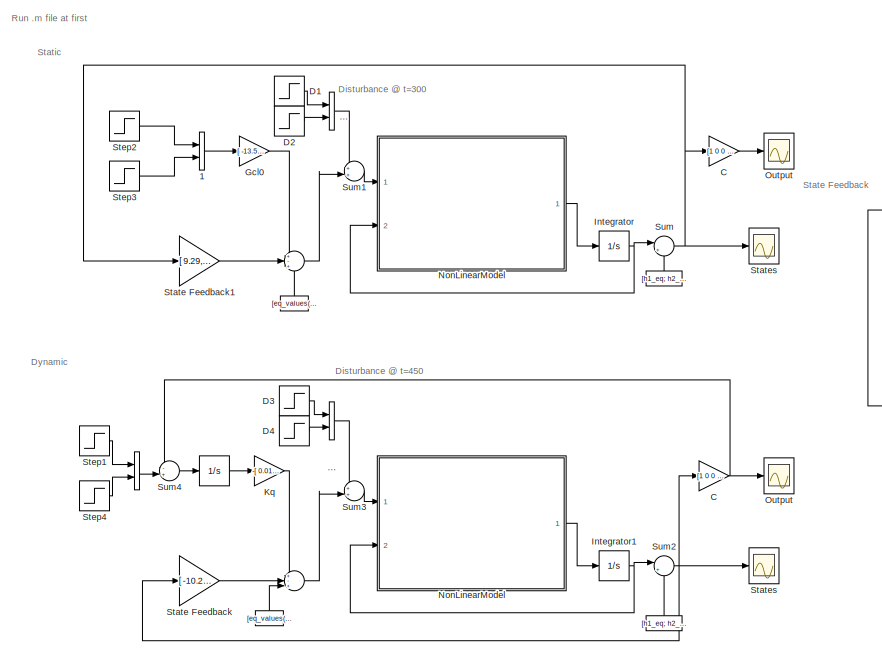
[diagram: root canvas - part 1/2, left side, full height]
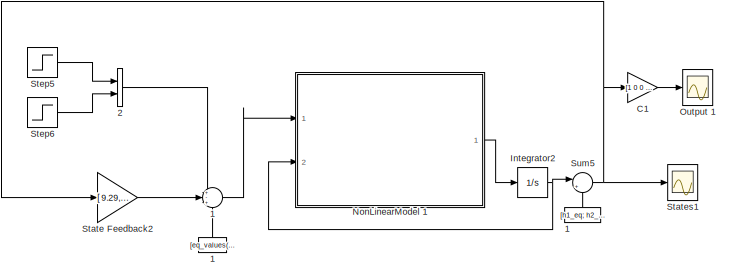
[diagram: root canvas - part 2/2, middle right region]
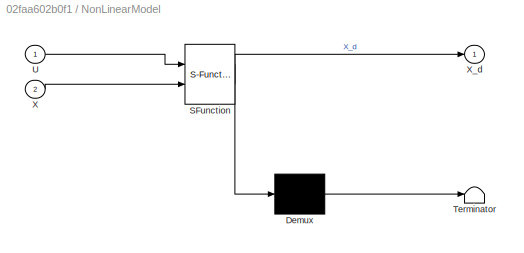
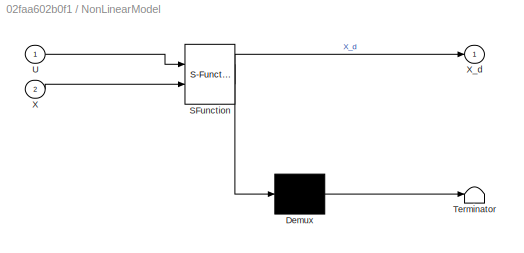
MODEL slx_02faa602b0f1
KIND model
CONFIG AbsTol = auto
CONFIG EnableMultiTasking = off
CONFIG FixedStep = auto
CONFIG MaxStep = auto
CONFIG MinStep = auto
CONFIG RelTol = 1e-3
CONFIG SampleTimeConstraint = Unconstrained
CONFIG Solver = VariableStepAuto
CONFIG SolverName = VariableStepAuto
CONFIG StartTime = 0.0
CONFIG StopTime = 1000
BLOCK [Constant]  
  NameLocation = right
  Value = [h1_eq; h2_eq; eq_values(1);eq_values(2)]
BLOCK [Concatenate]       
  Ports = [2, 1]
BLOCK [Sum]         
  Inputs = +-+
  Ports = [3, 1]
BLOCK [Constant]                         
  NameLocation = right
  Value = [eq_values(3);eq_values(4)]
BLOCK [Constant]                              
  NameLocation = right
  Value = [h1_eq; h2_eq; eq_values(1);eq_values(2)]
BLOCK [Constant]                                   
  NameLocation = right
  Value = [eq_values(3);eq_values(4)]
BLOCK [Concatenate]                                                                    
  Ports = [2, 1]
BLOCK [Concatenate]                                                                          
  Ports = [2, 1]
BLOCK [Constant]                              1
  NameLocation = right
  Value = [h1_eq; h2_eq; eq_values(1);eq_values(2)]
BLOCK [Constant]                         1
  NameLocation = right
  Value = [eq_values(3);eq_values(4)]
BLOCK [Sum]         1
  Inputs = +-+
  Ports = [3, 1]
BLOCK [Concatenate]    1
  Ports = [2, 1]
BLOCK [Concatenate]    2
  Ports = [2, 1]
BLOCK [Gain] C
  Gain = [1 0 0 0;\n   0 1 0 0]
  Multiplication = Matrix(K*u)
BLOCK [Gain] C  
  Gain = [1 0 0 0;\n   0 1 0 0]
  Multiplication = Matrix(K*u)
BLOCK [Gain] C1
  Gain = [1 0 0 0;\n   0 1 0 0]
  Multiplication = Matrix(K*u)
BLOCK [Step] D1
  After = 4
  SampleTime = 0
  Time = 300
BLOCK [Step] D2
  After = 4
  SampleTime = 0
  Time = 300
BLOCK [Step] D3
  After = 4
  SampleTime = 0
  Time = 450
BLOCK [Step] D4
  After = 4
  SampleTime = 0
  Time = 450
BLOCK [Gain] Gcl0
  Gain = [ -13.5, 60.0; 44.0, 0.94]
  Multiplication = Matrix(K*u)
BLOCK [Integrator] Integrator
  InitialCondition = [h1_eq;h2_eq;h3_eq;h4_eq]
  Ports = [1, 1]
BLOCK [Integrator] Integrator1
  InitialCondition = [h1_eq;h2_eq;h3_eq;h4_eq]
  Ports = [1, 1]
BLOCK [Integrator] Integrator2
  InitialCondition = [h1_eq;h2_eq;h3_eq;h4_eq]
  Ports = [1, 1]
BLOCK [Gain] Kq
  Gain = -[ 0.0157, -0.888; -0.994, -0.123]
  Multiplication = Matrix(u*K)
BLOCK [SubSystem] NonLinearModel
  ErrorFcn = Stateflow.Translate.translate
  PermitHierarchicalResolution = ExplicitOnly
  Ports = [2, 1]
  RequestExecContextInheritance = off
  SFBlockType = MATLAB Function
  TreatAsAtomicUnit = on
BLOCK [SubSystem] NonLinearModel 
  ErrorFcn = Stateflow.Translate.translate
  PermitHierarchicalResolution = ExplicitOnly
  Ports = [2, 1]
  RequestExecContextInheritance = off
  SFBlockType = MATLAB Function
  TreatAsAtomicUnit = on
BLOCK [Demux] NonLinearModel / Demux 
  Outputs = 1
  Ports = [1, 1]
BLOCK [S-Function] NonLinearModel / SFunction 
  EnableBusSupport = on
  FunctionName = sf_sfun
  PortCounts = [2 2]
  Ports = [2, 2]
  SFcnIsStateOwnerBlock = off
  SFunctionDeploymentMode = off
  Tag = Stateflow S-Function 4
BLOCK [Terminator] NonLinearModel / Terminator 
BLOCK [Inport] NonLinearModel /U
BLOCK [Inport] NonLinearModel /X
  Port = 2
BLOCK [Outport] NonLinearModel /X_d
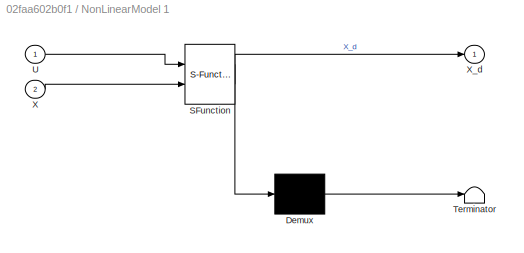
BLOCK [SubSystem] NonLinearModel 1
  ErrorFcn = Stateflow.Translate.translate
  PermitHierarchicalResolution = ExplicitOnly
  Ports = [2, 1]
  RequestExecContextInheritance = off
  SFBlockType = MATLAB Function
  TreatAsAtomicUnit = on
BLOCK [Demux] NonLinearModel 1/ Demux 
  Outputs = 1
  Ports = [1, 1]
BLOCK [S-Function] NonLinearModel 1/ SFunction 
  EnableBusSupport = on
  FunctionName = sf_sfun
  PortCounts = [2 2]
  Ports = [2, 2]
  SFcnIsStateOwnerBlock = off
  SFunctionDeploymentMode = off
  Tag = Stateflow S-Function 2
BLOCK [Terminator] NonLinearModel 1/ Terminator 
BLOCK [Inport] NonLinearModel 1/U
BLOCK [Inport] NonLinearModel 1/X
  Port = 2
BLOCK [Outport] NonLinearModel 1/X_d
BLOCK [Demux] NonLinearModel/ Demux 
  Outputs = 1
  Ports = [1, 1]
BLOCK [S-Function] NonLinearModel/ SFunction 
  EnableBusSupport = on
  FunctionName = sf_sfun
  PortCounts = [2 2]
  Ports = [2, 2]
  SFcnIsStateOwnerBlock = off
  SFunctionDeploymentMode = off
  Tag = Stateflow S-Function 1
BLOCK [Terminator] NonLinearModel/ Terminator 
BLOCK [Inport] NonLinearModel/U
BLOCK [Inport] NonLinearModel/X
  Port = 2
BLOCK [Outport] NonLinearModel/X_d
BLOCK [Scope] Output 
  Floating = off
  NumInputPorts = 1
  Ports = [1]
  ScopeSpecificationString = Simulink.scopes.TimeScopeBlockCfg('CurrentConfiguration', extmgr.ConfigurationSet(extmgr.Configuration('Core','General UI',true,'FigureColor',[1 1 1]),extmgr.Configuration('Core','Source UI',true),extmgr.Configuration('Sources','WiredSimulink',true,'DataLoggingVariableName','ScopeData2','DataLoggingSaveFormat','StructureWithTime','DataLoggingDecimation','1','DataLoggingDecimateData',true),extmgr.C...<+3098ch>
BLOCK [Scope] Output  
  Floating = off
  NumInputPorts = 1
  Ports = [1]
  ScopeSpecificationString = Simulink.scopes.TimeScopeBlockCfg('CurrentConfiguration', extmgr.ConfigurationSet(extmgr.Configuration('Core','General UI',true,'FigureColor',[1 1 1]),extmgr.Configuration('Core','Source UI',true),extmgr.Configuration('Sources','WiredSimulink',true,'DataLoggingVariableName','ScopeData1','DataLoggingSaveFormat','StructureWithTime','DataLoggingDecimation','1','DataLoggingDecimateData',true),extmgr.C...<+3137ch>
BLOCK [Scope] Output 1
  Floating = off
  NumInputPorts = 1
  Ports = [1]
  ScopeSpecificationString = Simulink.scopes.TimeScopeBlockCfg('CurrentConfiguration', extmgr.ConfigurationSet(extmgr.Configuration('Core','General UI',true,'FigureColor',[1 1 1]),extmgr.Configuration('Core','Source UI',true),extmgr.Configuration('Sources','WiredSimulink',true,'DataLoggingVariableName','ScopeData1','DataLoggingSaveFormat','StructureWithTime','DataLoggingDecimation','1','DataLoggingDecimateData',true),extmgr.C...<+3114ch>
BLOCK [Gain] State Feedback 
  Gain = [ -10.2, 36.3, -16.5,  24.5; 41.0, -4.6,  24.7, -13.1]
  Multiplication = Matrix(K*u)
BLOCK [Gain] State Feedback1
  Gain = [ 9.29, 34.1, -13.6,  24.9; 23.0, 12.0,  18.4, -3.73]
  Multiplication = Matrix(K*u)
BLOCK [Gain] State Feedback2
  Gain = [ 9.29, 34.1, -13.6,  24.9; 23.0, 12.0,  18.4, -3.73]
  Multiplication = Matrix(K*u)
BLOCK [Scope] States
  Floating = off
  NumInputPorts = 1
  Ports = [1]
  ScopeSpecificationString = Simulink.scopes.TimeScopeBlockCfg('CurrentConfiguration', extmgr.ConfigurationSet(extmgr.Configuration('Core','General UI',true,'FigureColor',[1 1 1]),extmgr.Configuration('Core','Source UI',true),extmgr.Configuration('Sources','WiredSimulink',true,'DataLoggingVariableName','ScopeData2','DataLoggingSaveFormat','StructureWithTime','DataLoggingDecimation','1','DataLoggingDecimateData',true),extmgr.C...<+3246ch>
BLOCK [Scope] States 
  Floating = off
  NumInputPorts = 1
  Ports = [1]
  ScopeSpecificationString = Simulink.scopes.TimeScopeBlockCfg('CurrentConfiguration', extmgr.ConfigurationSet(extmgr.Configuration('Core','General UI',true,'FigureColor',[1 1 1]),extmgr.Configuration('Core','Source UI',true),extmgr.Configuration('Sources','WiredSimulink',true,'DataLoggingVariableName','ScopeData3','DataLoggingSaveFormat','StructureWithTime','DataLoggingDecimation','1','DataLoggingDecimateData',true),extmgr.C...<+3219ch>
BLOCK [Scope] States1
  Floating = off
  NumInputPorts = 1
  Ports = [1]
  ScopeSpecificationString = Simulink.scopes.TimeScopeBlockCfg('CurrentConfiguration', extmgr.ConfigurationSet(extmgr.Configuration('Core','General UI',true,'FigureColor',[1 1 1]),extmgr.Configuration('Core','Source UI',true),extmgr.Configuration('Sources','WiredSimulink',true,'DataLoggingVariableName','ScopeData2','DataLoggingSaveFormat','StructureWithTime','DataLoggingDecimation','1','DataLoggingDecimateData',true),extmgr.C...<+3215ch>
BLOCK [Step] Step1
  SampleTime = 0
BLOCK [Step] Step2
  SampleTime = 0
BLOCK [Step] Step3
  SampleTime = 0
BLOCK [Step] Step4
  SampleTime = 0
BLOCK [Step] Step5
  SampleTime = 0
BLOCK [Step] Step6
  SampleTime = 0
BLOCK [Sum] Sum
  Inputs = |+-
  Ports = [2, 1]
BLOCK [Sum] Sum1
  Inputs = ++|
  Ports = [2, 1]
BLOCK [Sum] Sum2
  Inputs = |+-
  Ports = [2, 1]
BLOCK [Sum] Sum3
  Inputs = ++|
  Ports = [2, 1]
BLOCK [Sum] Sum4
  Inputs = -+|
  Ports = [2, 1]
BLOCK [Sum] Sum5
  Inputs = |+-
  Ports = [2, 1]
ANNOTATION (root): Run .m file at first
ANNOTATION (root): Disturbance @ t=300
ANNOTATION (root): Disturbance @ t=450
ANNOTATION (root): Dynamic
ANNOTATION (root): State Feedback
ANNOTATION (root): Static
LINE                                                                          :1 -> Sum3:1
LINE                                                                    :1 -> Sum1:1
LINE                                   :1 ->  :3
LINE                              1:1 -> Sum5:2
LINE                              :1 -> Sum:2
LINE                         1:1 ->         1:3
LINE                         :1 ->         :3
LINE         1:1 -> NonLinearModel 1:1
LINE         :1 -> Sum1:2
LINE       :1 -> Sum4:2
LINE    1:1 -> Gcl0:1
LINE    2:1 ->         1:1
NET  :1 -> Kq:1, Sum2:2, Sum3:2
NET C  :1 -> Output  :1, Sum4:1
LINE C1:1 -> Output 1:1
LINE C:1 -> Output :1
LINE D1:1 ->                                                                    :1
LINE D2:1 ->                                                                    :2
LINE D3:1 ->                                                                          :1
LINE D4:1 ->                                                                          :2
LINE Gcl0:1 ->         :1
NET Integrator1:1 -> NonLinearModel:2, Sum2:1
NET Integrator2:1 -> NonLinearModel 1:2, Sum5:1
NET Integrator:1 -> NonLinearModel :2, Sum:1
LINE Kq:1 ->  :1
LINE NonLinearModel 1:1 -> Integrator2:1
LINE NonLinearModel :1 -> Integrator:1
LINE NonLinearModel:1 -> Integrator1:1
LINE State Feedback :1 ->  :2
LINE State Feedback1:1 ->         :2
LINE State Feedback2:1 ->         1:2
LINE Step1:1 ->       :1
LINE Step2:1 ->    1:1
LINE Step3:1 ->    1:2
LINE Step4:1 ->       :2
LINE Step5:1 ->    2:1
LINE Step6:1 ->    2:2
LINE Sum1:1 -> NonLinearModel :1
NET Sum2:1 -> C  :1, State Feedback :1, States :1
LINE Sum3:1 -> NonLinearModel:1
LINE Sum4:1 ->  :1
NET Sum5:1 -> C1:1, State Feedback2:1, States1:1
NET Sum:1 -> C:1, State Feedback1:1, States:1
note: NET lines group one-source signal fan-out (src -> all destinations, sorted); 1:1 wires keep LINE
CHART NonLinearModel states=1 transitions=1
  STATE_LABEL 'eML_blk_kernel()'
  STATE_LABEL 'SCRIPT:\nfunction X_d = non_linear_plant(U,X)\nArea = [730 730 730 730]; % area of the tanks in cm^2\na = [2.10 2.14 2.2 2.3];  % area of the drain in cm^2\ny = [0.3 0.35];           % y(1) = Ratio of flow in tank1 to flow in tank4                          % y(2) = Ratio of flow in tank2 to flow in tank3                   \nk = [7.45 7.30];          % pump proportionality constants in cm^2/s\ng = 981;  ...<+457ch>'
CHART NonLinearModel 1 states=1 transitions=1
  STATE_LABEL 'eML_blk_kernel()'
  STATE_LABEL 'SCRIPT:\nfunction X_d   = non_linear_plant(U,X)\nArea = [730 730 730 730]; % area of the tanks in cm^2\na = [2.10 2.14 2.2 2.3];  % area of the drain in cm^2\ny = [0.3 0.35];           % y(1) = Ratio of flow in tank1 to flow in tank4\n                          % y(2) = Ratio of flow in tank2 to flow in tank3                   \nk = [7.45 7.30];          % pump proportionality constants in cm^2/s\ng = 981...<+460ch>'
CHART NonLinearModel  states=1 transitions=1
  STATE_LABEL 'eML_blk_kernel()'
  STATE_LABEL 'SCRIPT:\nfunction X_d   = non_linear_plant(U,X)\nArea = [730 730 730 730]; % area of the tanks in cm^2\na = [2.10 2.14 2.2 2.3];  % area of the drain in cm^2\ny = [0.3 0.35];           % y(1) = Ratio of flow in tank1 to flow in tank4                          % y(2) = Ratio of flow in tank2 to flow in tank3                   \nk = [7.45 7.30];          % pump proportionality constants in cm^2/s\ng = 981;...<+459ch>'
CHART  states=0 transitions=0
CHART  states=0 transitions=0
CHART  states=0 transitions=0
